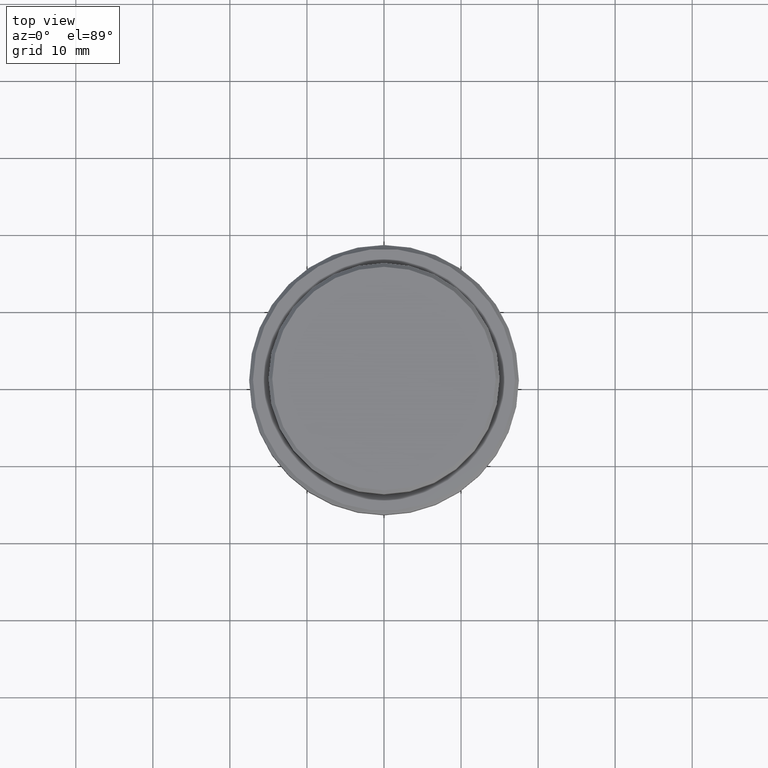
[diagram: clean part render]
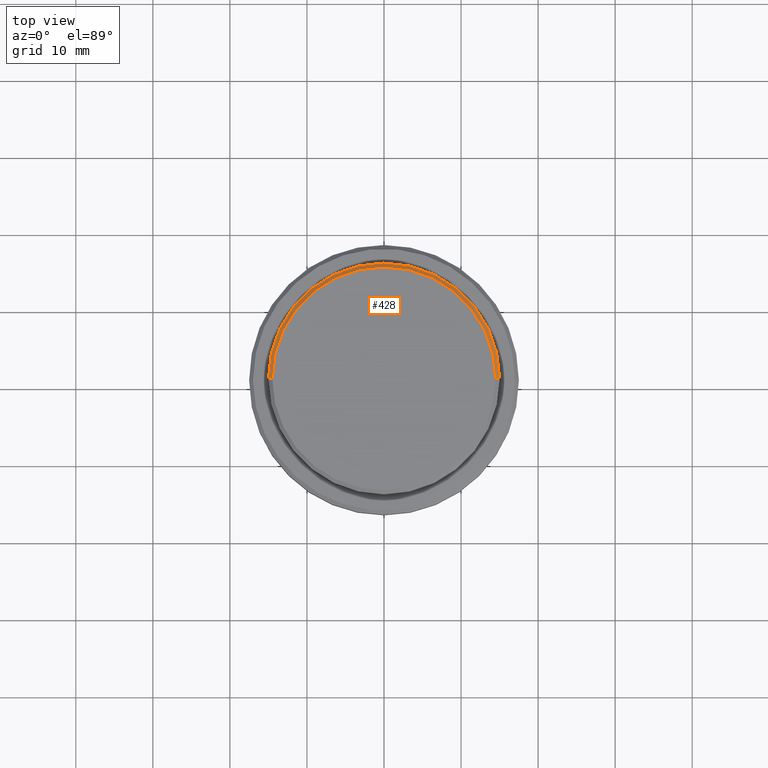
[diagram: same view with one face highlighted and labeled with its STEP entity id]
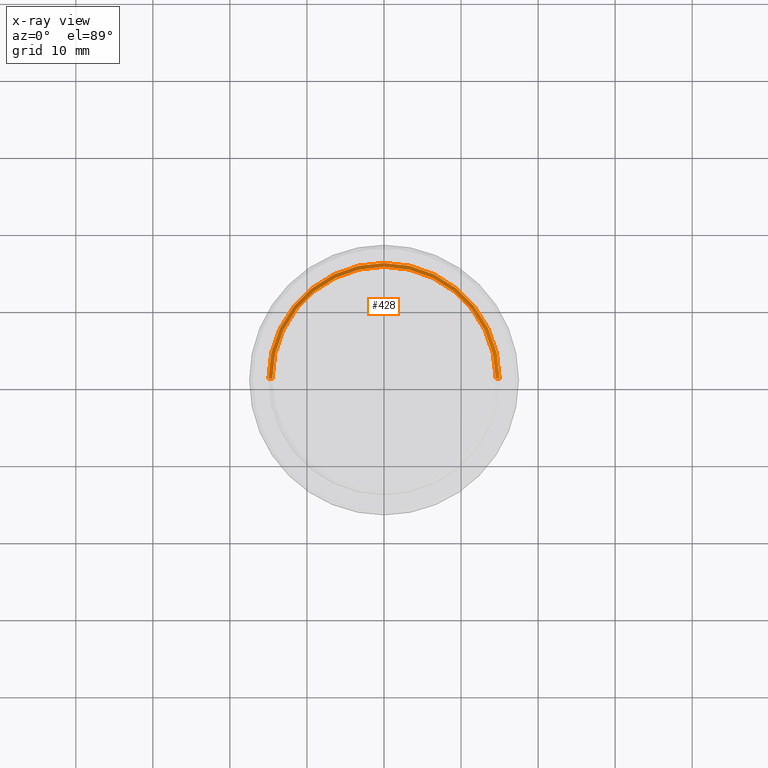
[diagram: x-ray of the same camera — body ghosted, the highlighted face saturated]
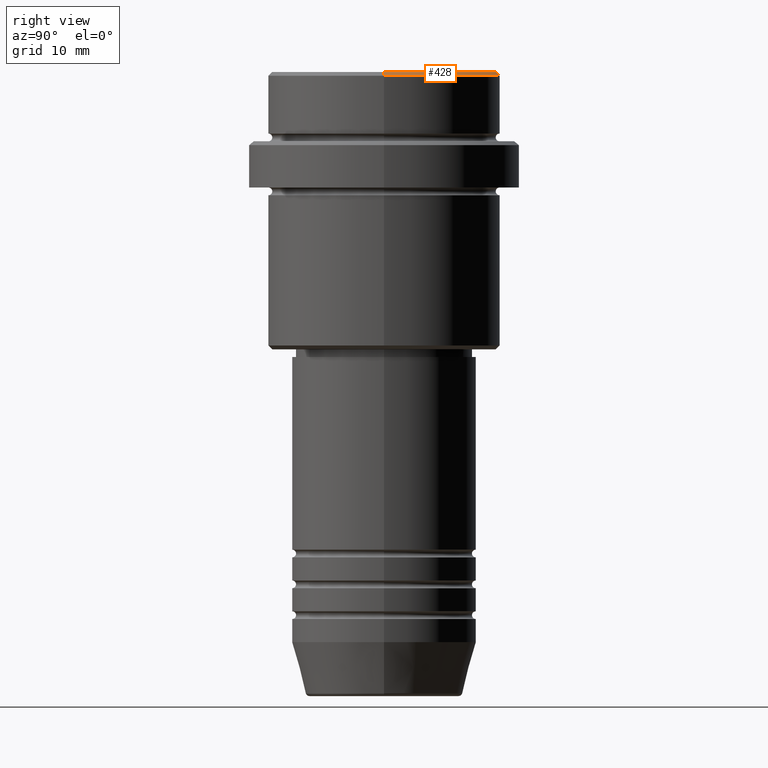
[diagram: same view with one face highlighted and labeled with its STEP entity id]
A machine part, top view. The second image highlights one B-rep face of the part: STEP entity #428.
The next image is the same camera in x-ray: the body ghosted, the highlighted face saturated — about 0% of this face is hidden behind the body in this view.
A second angle (right view) of the same face is appended — the face is thin or edge-on in the first view.
In plain terms, the highlighted conical surface has half-angle 45 deg.
Its self-contained STEP definition (entity closure, byte-faithful):
#11 = LINE ( 'NONE', #1300, #1053 ) ;
#63 = DIRECTION ( 'NONE',  ( 0.000000000000000000, 0.000000000000000000, -1.000000000000000000 ) ) ;
#134 = DIRECTION ( 'NONE',  ( 1.000000000000000000, 0.000000000000000000, 0.000000000000000000 ) ) ;
#142 = FACE_OUTER_BOUND ( 'NONE', #719, .T. ) ;
#158 = EDGE_CURVE ( 'NONE', #527, #844, #994, .T. ) ;
#206 = CIRCLE ( 'NONE', #440, 15.00000000000000000 ) ;
#222 = ORIENTED_EDGE ( 'NONE', *, *, #1144, .F. ) ;
#260 = DIRECTION ( 'NONE',  ( -0.000000000000000000, -0.000000000000000000, 1.000000000000000000 ) ) ;
#276 = AXIS2_PLACEMENT_3D ( 'NONE', #1019, #260, #134 ) ;
#318 = CONICAL_SURFACE ( 'NONE', #1281, 14.50000000000001066, 0.7853981633974396193 ) ;
#428 = ADVANCED_FACE ( 'NONE', ( #142 ), #318, .T. ) ;
#440 = AXIS2_PLACEMENT_3D ( 'NONE', #1166, #63, #723 ) ;
#473 = DIRECTION ( 'NONE',  ( -1.000000000000000000, 0.000000000000000000, 0.000000000000000000 ) ) ;
#507 = CIRCLE ( 'NONE', #276, 14.50000000000001066 ) ;
#527 = VERTEX_POINT ( 'NONE', #956 ) ;
#559 = CARTESIAN_POINT ( 'NONE',  ( -15.00000000000000000, 1.836970198721029589E-15, -0.4999999999999970024 ) ) ;
#590 = CARTESIAN_POINT ( 'NONE',  ( 0.000000000000000000, 0.000000000000000000, 0.000000000000000000 ) ) ;
#612 = CARTESIAN_POINT ( 'NONE',  ( -14.50000000000001066, 0.000000000000000000, 0.000000000000000000 ) ) ;
#632 = ORIENTED_EDGE ( 'NONE', *, *, #1408, .F. ) ;
#650 = VERTEX_POINT ( 'NONE', #559 ) ;
#719 = EDGE_LOOP ( 'NONE', ( #1178, #1293, #632, #222 ) ) ;
#723 = DIRECTION ( 'NONE',  ( 1.000000000000000000, 0.000000000000000000, 0.000000000000000000 ) ) ;
#755 = EDGE_CURVE ( 'NONE', #527, #1029, #507, .T. ) ;
#801 = DIRECTION ( 'NONE',  ( 0.7071067811865414665, 8.659560562354857670E-17, -0.7071067811865536790 ) ) ;
#828 = VECTOR ( 'NONE', #801, 1000.000000000000000 ) ;
#844 = VERTEX_POINT ( 'NONE', #1000 ) ;
#956 = CARTESIAN_POINT ( 'NONE',  ( 14.50000000000001066, 1.806354028742346591E-15, 0.000000000000000000 ) ) ;
#994 = LINE ( 'NONE', #1326, #828 ) ;
#1000 = CARTESIAN_POINT ( 'NONE',  ( 15.00000000000000000, 0.000000000000000000, -0.4999999999999970024 ) ) ;
#1010 = DIRECTION ( 'NONE',  ( 0.000000000000000000, 0.000000000000000000, -1.000000000000000000 ) ) ;
#1019 = CARTESIAN_POINT ( 'NONE',  ( 0.000000000000000000, 0.000000000000000000, 0.000000000000000000 ) ) ;
#1029 = VERTEX_POINT ( 'NONE', #612 ) ;
#1053 = VECTOR ( 'NONE', #1320, 1000.000000000000000 ) ;
#1144 = EDGE_CURVE ( 'NONE', #1029, #650, #11, .T. ) ;
#1166 = CARTESIAN_POINT ( 'NONE',  ( 0.000000000000000000, 0.000000000000000000, -0.4999999999999970024 ) ) ;
#1178 = ORIENTED_EDGE ( 'NONE', *, *, #755, .F. ) ;
#1281 = AXIS2_PLACEMENT_3D ( 'NONE', #590, #1010, #473 ) ;
#1293 = ORIENTED_EDGE ( 'NONE', *, *, #158, .T. ) ;
#1300 = CARTESIAN_POINT ( 'NONE',  ( -14.50000000000001066, 0.000000000000000000, 0.000000000000000000 ) ) ;
#1320 = DIRECTION ( 'NONE',  ( -0.7071067811865414665, 0.000000000000000000, -0.7071067811865536790 ) ) ;
#1326 = CARTESIAN_POINT ( 'NONE',  ( 14.50000000000001066, 1.775737858763663593E-15, 0.000000000000000000 ) ) ;
#1408 = EDGE_CURVE ( 'NONE', #650, #844, #206, .T. ) ;